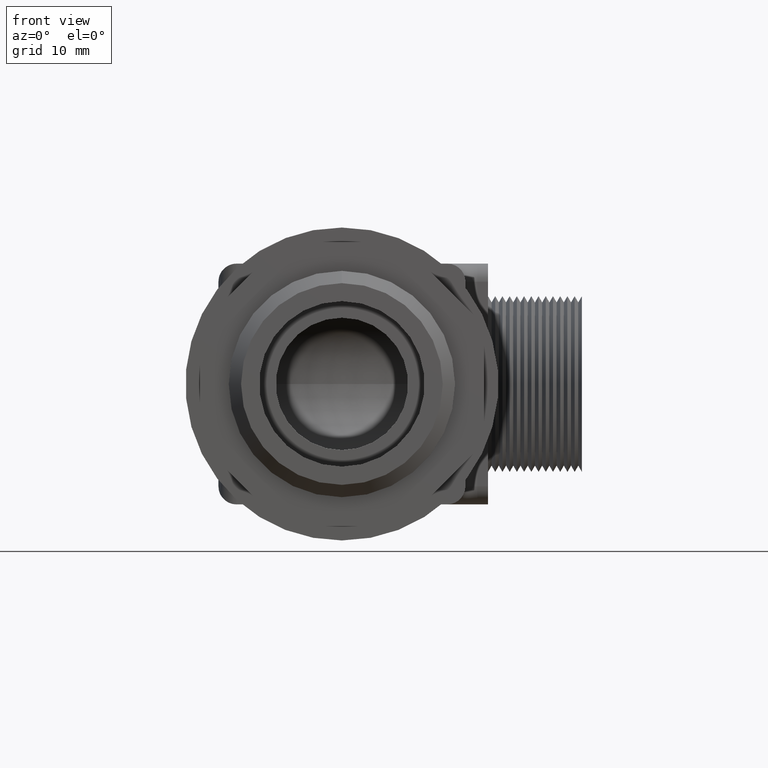
[diagram: clean part render]
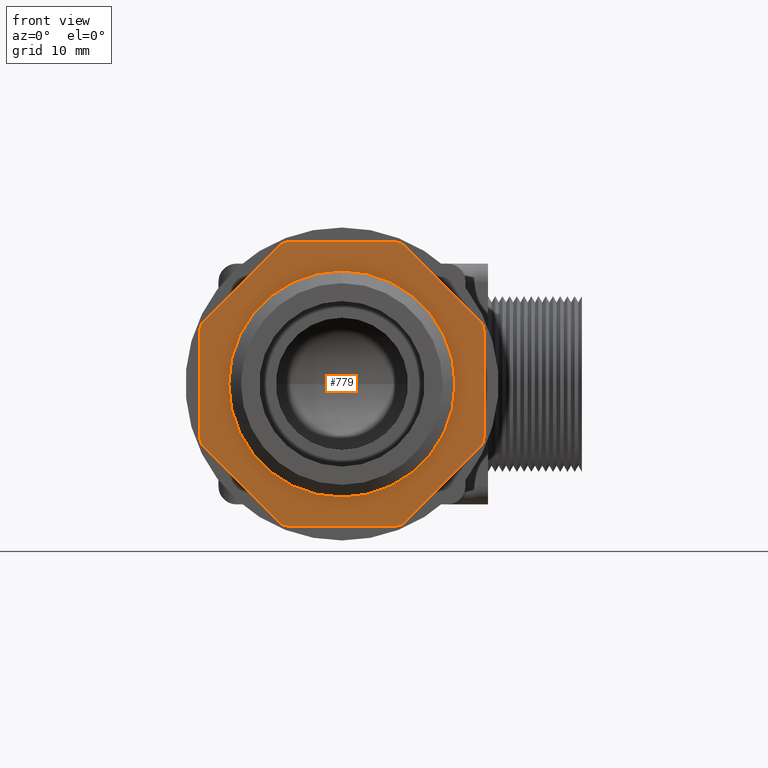
[diagram: same view with one face highlighted and labeled with its STEP entity id]
A machine part, front view. The second image highlights one B-rep face of the part: STEP entity #779.
In plain terms, the highlighted planar face has unit normal (0, -1, 0).
Its self-contained STEP definition (entity closure, byte-faithful):
#511 = ORIENTED_EDGE ( 'NONE', *, *, #512, .T. ) ;
#512 = EDGE_CURVE ( 'NONE', #545, #515, #1668, .T. ) ;
#513 = EDGE_CURVE ( 'NONE', #521, #519, #1940, .T. ) ;
#514 = ORIENTED_EDGE ( 'NONE', *, *, #536, .T. ) ;
#515 = VERTEX_POINT ( 'NONE', #1936 ) ;
#516 = VERTEX_POINT ( 'NONE', #1935 ) ;
#517 = EDGE_CURVE ( 'NONE', #522, #521, #1934, .T. ) ;
#518 = ORIENTED_EDGE ( 'NONE', *, *, #513, .T. ) ;
#519 = VERTEX_POINT ( 'NONE', #1929 ) ;
#520 = ORIENTED_EDGE ( 'NONE', *, *, #517, .T. ) ;
#521 = VERTEX_POINT ( 'NONE', #1928 ) ;
#522 = VERTEX_POINT ( 'NONE', #1927 ) ;
#523 = ORIENTED_EDGE ( 'NONE', *, *, #531, .T. ) ;
#524 = ORIENTED_EDGE ( 'NONE', *, *, #525, .T. ) ;
#525 = EDGE_CURVE ( 'NONE', #543, #546, #1926, .T. ) ;
#526 = ORIENTED_EDGE ( 'NONE', *, *, #544, .T. ) ;
#527 = EDGE_CURVE ( 'NONE', #712, #714, #1922, .T. ) ;
#531 = EDGE_CURVE ( 'NONE', #515, #522, #1972, .T. ) ;
#532 = ORIENTED_EDGE ( 'NONE', *, *, #533, .T. ) ;
#533 = EDGE_CURVE ( 'NONE', #538, #549, #1963, .T. ) ;
#534 = ORIENTED_EDGE ( 'NONE', *, *, #535, .T. ) ;
#535 = EDGE_CURVE ( 'NONE', #537, #538, #1958, .T. ) ;
#536 = EDGE_CURVE ( 'NONE', #519, #537, #1954, .T. ) ;
#537 = VERTEX_POINT ( 'NONE', #1949 ) ;
#538 = VERTEX_POINT ( 'NONE', #1948 ) ;
#539 = EDGE_CURVE ( 'NONE', #549, #540, #1946, .T. ) ;
#540 = VERTEX_POINT ( 'NONE', #1942 ) ;
#541 = ORIENTED_EDGE ( 'NONE', *, *, #542, .T. ) ;
#542 = EDGE_CURVE ( 'NONE', #540, #543, #1941, .T. ) ;
#543 = VERTEX_POINT ( 'NONE', #1999 ) ;
#544 = EDGE_CURVE ( 'NONE', #714, #545, #1998, .T. ) ;
#545 = VERTEX_POINT ( 'NONE', #1994 ) ;
#546 = VERTEX_POINT ( 'NONE', #1993 ) ;
#547 = ORIENTED_EDGE ( 'NONE', *, *, #548, .T. ) ;
#548 = EDGE_CURVE ( 'NONE', #546, #516, #1992, .T. ) ;
#549 = VERTEX_POINT ( 'NONE', #1987 ) ;
#550 = ORIENTED_EDGE ( 'NONE', *, *, #539, .T. ) ;
#565 = ORIENTED_EDGE ( 'NONE', *, *, #587, .T. ) ;
#567 = VERTEX_POINT ( 'NONE', #1978 ) ;
#569 = EDGE_CURVE ( 'NONE', #516, #567, #2036, .T. ) ;
#575 = ORIENTED_EDGE ( 'NONE', *, *, #569, .T. ) ;
#587 = EDGE_CURVE ( 'NONE', #567, #711, #2010, .T. ) ;
#636 = VERTEX_POINT ( 'NONE', #2119 ) ;
#638 = EDGE_CURVE ( 'NONE', #639, #636, #2118, .T. ) ;
#639 = VERTEX_POINT ( 'NONE', #2113 ) ;
#708 = EDGE_CURVE ( 'NONE', #636, #639, #3474, .T. ) ;
#709 = ORIENTED_EDGE ( 'NONE', *, *, #710, .T. ) ;
#710 = EDGE_CURVE ( 'NONE', #711, #712, #3475, .T. ) ;
#711 = VERTEX_POINT ( 'NONE', #3528 ) ;
#712 = VERTEX_POINT ( 'NONE', #3527 ) ;
#713 = ORIENTED_EDGE ( 'NONE', *, *, #527, .T. ) ;
#714 = VERTEX_POINT ( 'NONE', #3526 ) ;
#779 = ADVANCED_FACE ( 'NONE', ( #3657, #3656 ), #3655, .T. ) ;
#780 = EDGE_LOOP ( 'NONE', ( #781, #782 ) ) ;
#781 = ORIENTED_EDGE ( 'NONE', *, *, #638, .T. ) ;
#782 = ORIENTED_EDGE ( 'NONE', *, *, #708, .T. ) ;
#783 = EDGE_LOOP ( 'NONE', ( #709, #713, #526, #511, #523, #520, #518, #514, #534, #532, #550, #541, #524, #547, #575, #565 ) ) ;
#1664 = DIRECTION ( 'NONE',  ( 0.0000000000000000000, 0.0000000000000000000, -1.000000000000000000 ) ) ;
#1665 = DIRECTION ( 'NONE',  ( 0.0000000000000000000, -1.000000000000000000, 0.0000000000000000000 ) ) ;
#1666 = CARTESIAN_POINT ( 'NONE',  ( -0.5399999999999998100, 0.1019999999999999700, -0.2236753236814710600 ) ) ;
#1667 = AXIS2_PLACEMENT_3D ( 'NONE', #1666, #1665, #1664 ) ;
#1668 = CIRCLE ( 'NONE', #1667, 0.05000000000000001000 ) ;
#1918 = DIRECTION ( 'NONE',  ( 0.0000000000000000000, 0.0000000000000000000, -1.000000000000000000 ) ) ;
#1919 = DIRECTION ( 'NONE',  ( 0.0000000000000000000, -1.000000000000000000, 0.0000000000000000000 ) ) ;
#1920 = CARTESIAN_POINT ( 'NONE',  ( -0.5399999999999998100, 0.1019999999999999700, 0.2236753236814716700 ) ) ;
#1921 = AXIS2_PLACEMENT_3D ( 'NONE', #1920, #1919, #1918 ) ;
#1922 = CIRCLE ( 'NONE', #1921, 0.05000000000000001000 ) ;
#1923 = DIRECTION ( 'NONE',  ( -0.7071067811865474600, 0.0000000000000000000, 0.7071067811865475700 ) ) ;
#1924 = VECTOR ( 'NONE', #1923, 39.37007874015748100 ) ;
#1925 = CARTESIAN_POINT ( 'NONE',  ( 0.1821930009000632700, 0.1019999999999999800, 0.6521930009000629400 ) ) ;
#1926 = LINE ( 'NONE', #1925, #1924 ) ;
#1927 = CARTESIAN_POINT ( 'NONE',  ( -0.2590306627407983900, 0.1019999999999999800, -0.5753553390593273400 ) ) ;
#1928 = CARTESIAN_POINT ( 'NONE',  ( -0.2236753236814710000, 0.1019999999999999800, -0.5899999999999998600 ) ) ;
#1929 = CARTESIAN_POINT ( 'NONE',  ( 0.2236753236814714700, 0.1019999999999999800, -0.5899999999999998600 ) ) ;
#1930 = DIRECTION ( 'NONE',  ( 0.0000000000000000000, 0.0000000000000000000, -1.000000000000000000 ) ) ;
#1931 = DIRECTION ( 'NONE',  ( 0.0000000000000000000, -1.000000000000000000, 0.0000000000000000000 ) ) ;
#1932 = CARTESIAN_POINT ( 'NONE',  ( -0.2236753236814710000, 0.1019999999999999700, -0.5399999999999998100 ) ) ;
#1933 = AXIS2_PLACEMENT_3D ( 'NONE', #1932, #1931, #1930 ) ;
#1934 = CIRCLE ( 'NONE', #1933, 0.05000000000000001000 ) ;
#1935 = CARTESIAN_POINT ( 'NONE',  ( 0.2236753236814715300, 0.1019999999999999800, 0.5900000000000000800 ) ) ;
#1936 = CARTESIAN_POINT ( 'NONE',  ( -0.5753553390593272300, 0.1019999999999999800, -0.2590306627407985000 ) ) ;
#1937 = DIRECTION ( 'NONE',  ( 1.000000000000000000, 0.0000000000000000000, 0.0000000000000000000 ) ) ;
#1938 = VECTOR ( 'NONE', #1937, 39.37007874015748100 ) ;
#1939 = CARTESIAN_POINT ( 'NONE',  ( -0.4699999999999997000, 0.1019999999999999800, -0.5899999999999998600 ) ) ;
#1940 = LINE ( 'NONE', #1939, #1938 ) ;
#1941 = CIRCLE ( 'NONE', #2003, 0.05000000000000001000 ) ;
#1942 = CARTESIAN_POINT ( 'NONE',  ( 0.5899999999999999700, 0.1019999999999999800, 0.2236753236814715800 ) ) ;
#1943 = DIRECTION ( 'NONE',  ( -0.0000000000000000000, 0.0000000000000000000, 1.000000000000000000 ) ) ;
#1944 = VECTOR ( 'NONE', #1943, 39.37007874015748100 ) ;
#1945 = CARTESIAN_POINT ( 'NONE',  ( 0.5899999999999999700, 0.1019999999999999800, 0.0000000000000000000 ) ) ;
#1946 = LINE ( 'NONE', #1945, #1944 ) ;
#1948 = CARTESIAN_POINT ( 'NONE',  ( 0.5753553390593274500, 0.1019999999999999800, -0.2590306627407987200 ) ) ;
#1949 = CARTESIAN_POINT ( 'NONE',  ( 0.2590306627407988300, 0.1019999999999999800, -0.5753553390593272300 ) ) ;
#1950 = DIRECTION ( 'NONE',  ( 0.0000000000000000000, 0.0000000000000000000, -1.000000000000000000 ) ) ;
#1951 = DIRECTION ( 'NONE',  ( 0.0000000000000000000, -1.000000000000000000, 0.0000000000000000000 ) ) ;
#1952 = CARTESIAN_POINT ( 'NONE',  ( 0.2236753236814714700, 0.1019999999999999700, -0.5399999999999998100 ) ) ;
#1953 = AXIS2_PLACEMENT_3D ( 'NONE', #1952, #1951, #1950 ) ;
#1954 = CIRCLE ( 'NONE', #1953, 0.05000000000000001000 ) ;
#1955 = DIRECTION ( 'NONE',  ( 0.7071067811865475700, 0.0000000000000000000, 0.7071067811865474600 ) ) ;
#1956 = VECTOR ( 'NONE', #1955, 39.37007874015748100 ) ;
#1957 = CARTESIAN_POINT ( 'NONE',  ( 0.1821930009000631300, 0.1019999999999999800, -0.6521930009000629400 ) ) ;
#1958 = LINE ( 'NONE', #1957, #1956 ) ;
#1959 = DIRECTION ( 'NONE',  ( 0.0000000000000000000, 0.0000000000000000000, -1.000000000000000000 ) ) ;
#1960 = DIRECTION ( 'NONE',  ( 0.0000000000000000000, -1.000000000000000000, 0.0000000000000000000 ) ) ;
#1961 = CARTESIAN_POINT ( 'NONE',  ( 0.5399999999999999200, 0.1019999999999999700, -0.2236753236814713300 ) ) ;
#1962 = AXIS2_PLACEMENT_3D ( 'NONE', #1961, #1960, #1959 ) ;
#1963 = CIRCLE ( 'NONE', #1962, 0.05000000000000001000 ) ;
#1964 = DIRECTION ( 'NONE',  ( 0.7071067811865475700, 0.0000000000000000000, -0.7071067811865474600 ) ) ;
#1965 = VECTOR ( 'NONE', #1964, 39.37007874015748100 ) ;
#1966 = CARTESIAN_POINT ( 'NONE',  ( -0.6521930009000627100, 0.1019999999999999800, -0.1821930009000630200 ) ) ;
#1972 = LINE ( 'NONE', #1966, #1965 ) ;
#1978 = CARTESIAN_POINT ( 'NONE',  ( -0.2236753236814714700, 0.1019999999999999800, 0.5900000000000000800 ) ) ;
#1987 = CARTESIAN_POINT ( 'NONE',  ( 0.5899999999999999700, 0.1019999999999999800, -0.2236753236814713300 ) ) ;
#1988 = DIRECTION ( 'NONE',  ( 0.0000000000000000000, 0.0000000000000000000, -1.000000000000000000 ) ) ;
#1989 = DIRECTION ( 'NONE',  ( 0.0000000000000000000, -1.000000000000000000, 0.0000000000000000000 ) ) ;
#1990 = CARTESIAN_POINT ( 'NONE',  ( 0.2236753236814714700, 0.1019999999999999700, 0.5400000000000001500 ) ) ;
#1991 = AXIS2_PLACEMENT_3D ( 'NONE', #1990, #1989, #1988 ) ;
#1992 = CIRCLE ( 'NONE', #1991, 0.05000000000000001000 ) ;
#1993 = CARTESIAN_POINT ( 'NONE',  ( 0.2590306627407987800, 0.1019999999999999800, 0.5753553390593274500 ) ) ;
#1994 = CARTESIAN_POINT ( 'NONE',  ( -0.5899999999999998600, 0.1019999999999999800, -0.2236753236814710600 ) ) ;
#1995 = DIRECTION ( 'NONE',  ( 0.0000000000000000000, 0.0000000000000000000, -1.000000000000000000 ) ) ;
#1996 = VECTOR ( 'NONE', #1995, 39.37007874015748100 ) ;
#1997 = CARTESIAN_POINT ( 'NONE',  ( -0.5899999999999998600, 0.1019999999999999800, 0.0000000000000000000 ) ) ;
#1998 = LINE ( 'NONE', #1997, #1996 ) ;
#1999 = CARTESIAN_POINT ( 'NONE',  ( 0.5753553390593273400, 0.1019999999999999800, 0.2590306627407988300 ) ) ;
#2000 = DIRECTION ( 'NONE',  ( 0.0000000000000000000, 0.0000000000000000000, -1.000000000000000000 ) ) ;
#2001 = DIRECTION ( 'NONE',  ( 0.0000000000000000000, -1.000000000000000000, 0.0000000000000000000 ) ) ;
#2002 = CARTESIAN_POINT ( 'NONE',  ( 0.5399999999999999200, 0.1019999999999999700, 0.2236753236814715800 ) ) ;
#2003 = AXIS2_PLACEMENT_3D ( 'NONE', #2002, #2001, #2000 ) ;
#2006 = DIRECTION ( 'NONE',  ( 0.0000000000000000000, 0.0000000000000000000, -1.000000000000000000 ) ) ;
#2007 = DIRECTION ( 'NONE',  ( 0.0000000000000000000, -1.000000000000000000, 0.0000000000000000000 ) ) ;
#2008 = CARTESIAN_POINT ( 'NONE',  ( -0.2236753236814714700, 0.1019999999999999700, 0.5400000000000000400 ) ) ;
#2009 = AXIS2_PLACEMENT_3D ( 'NONE', #2008, #2007, #2006 ) ;
#2010 = CIRCLE ( 'NONE', #2009, 0.05000000000000001000 ) ;
#2029 = DIRECTION ( 'NONE',  ( -1.000000000000000000, 0.0000000000000000000, -1.397301795899573700E-016 ) ) ;
#2030 = VECTOR ( 'NONE', #2029, 39.37007874015748100 ) ;
#2031 = CARTESIAN_POINT ( 'NONE',  ( -0.4699999999999997500, 0.1019999999999999800, 0.5900000000000000800 ) ) ;
#2036 = LINE ( 'NONE', #2031, #2030 ) ;
#2113 = CARTESIAN_POINT ( 'NONE',  ( 0.0000000000000000000, 0.1019999999999999000, 0.4699999999999997000 ) ) ;
#2114 = DIRECTION ( 'NONE',  ( 0.0000000000000000000, 0.0000000000000000000, 1.000000000000000000 ) ) ;
#2115 = DIRECTION ( 'NONE',  ( -0.0000000000000000000, 1.000000000000000000, -0.0000000000000000000 ) ) ;
#2116 = CARTESIAN_POINT ( 'NONE',  ( 0.0000000000000000000, 0.1019999999999999000, 0.0000000000000000000 ) ) ;
#2117 = AXIS2_PLACEMENT_3D ( 'NONE', #2116, #2115, #2114 ) ;
#2118 = CIRCLE ( 'NONE', #2117, 0.4699999999999997000 ) ;
#2119 = CARTESIAN_POINT ( 'NONE',  ( 5.755649862965169500E-017, 0.1019999999999999000, -0.4699999999999997000 ) ) ;
#3470 = DIRECTION ( 'NONE',  ( 0.0000000000000000000, 0.0000000000000000000, 1.000000000000000000 ) ) ;
#3471 = DIRECTION ( 'NONE',  ( -0.0000000000000000000, 1.000000000000000000, -0.0000000000000000000 ) ) ;
#3472 = CARTESIAN_POINT ( 'NONE',  ( 0.0000000000000000000, 0.1019999999999999000, 0.0000000000000000000 ) ) ;
#3473 = AXIS2_PLACEMENT_3D ( 'NONE', #3472, #3471, #3470 ) ;
#3474 = CIRCLE ( 'NONE', #3473, 0.4699999999999997000 ) ;
#3475 = LINE ( 'NONE', #3531, #3530 ) ;
#3526 = CARTESIAN_POINT ( 'NONE',  ( -0.5899999999999998600, 0.1019999999999999800, 0.2236753236814716700 ) ) ;
#3527 = CARTESIAN_POINT ( 'NONE',  ( -0.5753553390593271200, 0.1019999999999999800, 0.2590306627407990600 ) ) ;
#3528 = CARTESIAN_POINT ( 'NONE',  ( -0.2590306627407987800, 0.1019999999999999800, 0.5753553390593274500 ) ) ;
#3529 = DIRECTION ( 'NONE',  ( -0.7071067811865474600, 0.0000000000000000000, -0.7071067811865474600 ) ) ;
#3530 = VECTOR ( 'NONE', #3529, 39.37007874015748900 ) ;
#3531 = CARTESIAN_POINT ( 'NONE',  ( -0.6521930009000629400, 0.1019999999999999800, 0.1821930009000632700 ) ) ;
#3651 = DIRECTION ( 'NONE',  ( 0.0000000000000000000, -0.0000000000000000000, -1.000000000000000000 ) ) ;
#3652 = DIRECTION ( 'NONE',  ( 0.0000000000000000000, -1.000000000000000000, 0.0000000000000000000 ) ) ;
#3653 = AXIS2_PLACEMENT_3D ( 'NONE', #3654, #3652, #3651 ) ;
#3654 = CARTESIAN_POINT ( 'NONE',  ( -0.4699999999999997000, 0.1019999999999999800, 0.0000000000000000000 ) ) ;
#3655 = PLANE ( 'NONE',  #3653 ) ;
#3656 = FACE_OUTER_BOUND ( 'NONE', #783, .T. ) ;
#3657 = FACE_BOUND ( 'NONE', #780, .T. ) ;